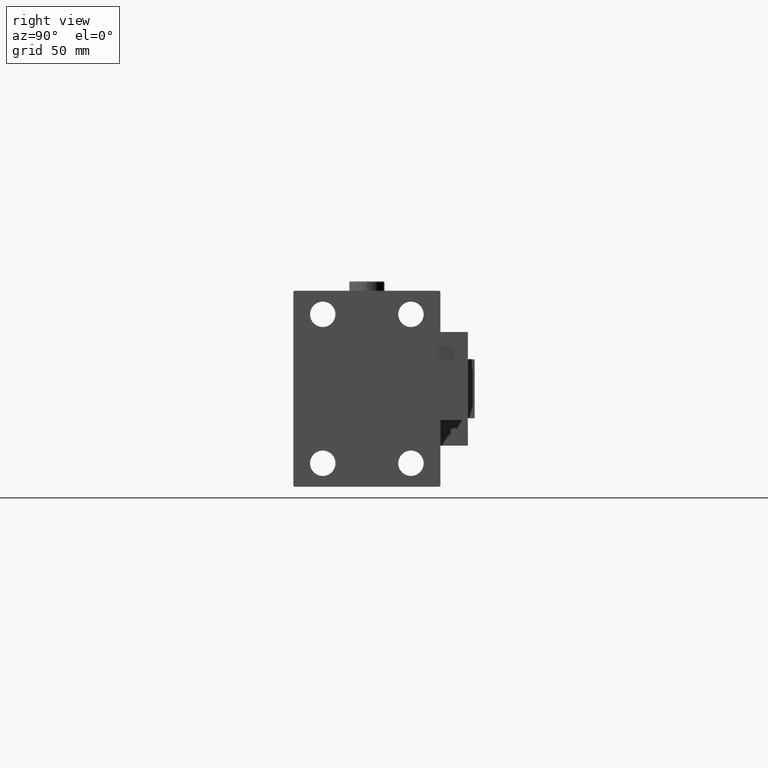
[diagram: clean part render]
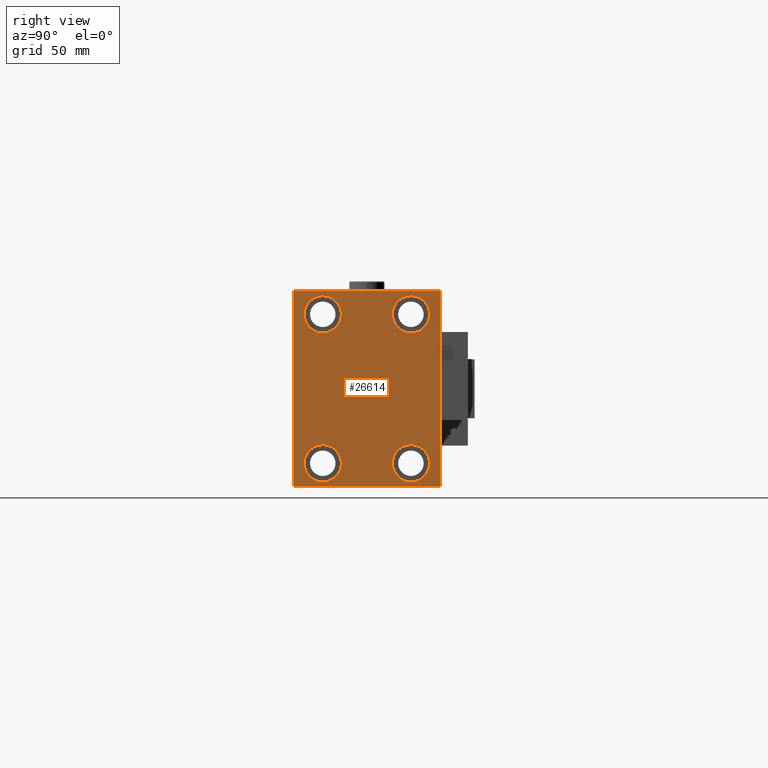
[diagram: same view with one face highlighted and labeled with its STEP entity id]
A machine part, right view. The second image highlights one B-rep face of the part: STEP entity #26614.
In plain terms, the highlighted planar face has unit normal (1, 0, 0).
Its self-contained STEP definition (entity closure, byte-faithful):
#388 = CIRCLE ( 'NONE', #50317, 9.500000000000001776 ) ;
#478 = ORIENTED_EDGE ( 'NONE', *, *, #13251, .T. ) ;
#690 = CARTESIAN_POINT ( 'NONE',  ( 233.0000000000000000, -22.50000000000000711, -37.99999999999999289 ) ) ;
#825 = VECTOR ( 'NONE', #19726, 1000.000000000000000 ) ;
#950 = VECTOR ( 'NONE', #10029, 1000.000000000000000 ) ;
#1335 = CIRCLE ( 'NONE', #16875, 9.500000000000001776 ) ;
#1760 = EDGE_CURVE ( 'NONE', #14907, #36949, #1335, .T. ) ;
#2375 = ORIENTED_EDGE ( 'NONE', *, *, #7717, .T. ) ;
#2614 = VERTEX_POINT ( 'NONE', #33602 ) ;
#3103 = ORIENTED_EDGE ( 'NONE', *, *, #49541, .T. ) ;
#3253 = EDGE_CURVE ( 'NONE', #45386, #34276, #50463, .T. ) ;
#4019 = CARTESIAN_POINT ( 'NONE',  ( 233.0000000000000000, 43.50000000000103739, -43.49999999999862865 ) ) ;
#4354 = DIRECTION ( 'NONE',  ( 0.000000000000000000, 0.000000000000000000, 1.000000000000000000 ) ) ;
#4358 = DIRECTION ( 'NONE',  ( 0.000000000000000000, 0.000000000000000000, 1.000000000000000000 ) ) ;
#4559 = VERTEX_POINT ( 'NONE', #33002 ) ;
#4630 = VECTOR ( 'NONE', #13797, 1000.000000000000000 ) ;
#5249 = DIRECTION ( 'NONE',  ( 0.000000000000000000, 0.000000000000000000, 1.000000000000000000 ) ) ;
#5491 = EDGE_CURVE ( 'NONE', #2614, #31744, #21395, .T. ) ;
#6302 = CARTESIAN_POINT ( 'NONE',  ( 233.0000000000000000, 22.50000000000000355, 28.49999999999998934 ) ) ;
#6663 = AXIS2_PLACEMENT_3D ( 'NONE', #38630, #46221, #38893 ) ;
#7473 = CARTESIAN_POINT ( 'NONE',  ( 233.0000000000000000, -22.50000000000000711, -28.49999999999998934 ) ) ;
#7717 = EDGE_CURVE ( 'NONE', #42095, #26586, #8657, .T. ) ;
#8404 = DIRECTION ( 'NONE',  ( -1.000000000000000000, -0.000000000000000000, -0.000000000000000000 ) ) ;
#8657 = LINE ( 'NONE', #42082, #11042 ) ;
#9473 = CARTESIAN_POINT ( 'NONE',  ( 233.0000000000000000, 37.50000000000000711, -50.00000000000000000 ) ) ;
#9790 = ORIENTED_EDGE ( 'NONE', *, *, #43563, .T. ) ;
#9815 = DIRECTION ( 'NONE',  ( 0.000000000000000000, 0.000000000000000000, -1.000000000000000000 ) ) ;
#9928 = EDGE_LOOP ( 'NONE', ( #52456, #3103 ) ) ;
#10029 = DIRECTION ( 'NONE',  ( 0.000000000000000000, -0.7071067811865279218, -0.7071067811865672237 ) ) ;
#10330 = ORIENTED_EDGE ( 'NONE', *, *, #5491, .T. ) ;
#10732 = ORIENTED_EDGE ( 'NONE', *, *, #42169, .T. ) ;
#10826 = CARTESIAN_POINT ( 'NONE',  ( 233.0000000000000000, 22.49999999999999645, -37.99999999999999289 ) ) ;
#11042 = VECTOR ( 'NONE', #17289, 1000.000000000000000 ) ;
#11638 = VERTEX_POINT ( 'NONE', #27073 ) ;
#11687 = CARTESIAN_POINT ( 'NONE',  ( 233.0000000000000000, -22.49999999999999645, 28.49999999999998934 ) ) ;
#11808 = ORIENTED_EDGE ( 'NONE', *, *, #1760, .T. ) ;
#12143 = EDGE_LOOP ( 'NONE', ( #42155, #9790 ) ) ;
#13251 = EDGE_CURVE ( 'NONE', #26586, #4559, #25312, .T. ) ;
#13796 = EDGE_CURVE ( 'NONE', #34252, #18000, #52461, .T. ) ;
#13797 = DIRECTION ( 'NONE',  ( 0.000000000000000000, -1.387778780781445676E-16, 1.000000000000000000 ) ) ;
#14141 = FACE_BOUND ( 'NONE', #12143, .T. ) ;
#14388 = VECTOR ( 'NONE', #14702, 1000.000000000000000 ) ;
#14702 = DIRECTION ( 'NONE',  ( 0.000000000000000000, -1.000000000000000000, -1.850371707708594316E-16 ) ) ;
#14788 = CARTESIAN_POINT ( 'NONE',  ( 233.0000000000000000, 36.99999999999999289, 50.00000000000000711 ) ) ;
#14907 = VERTEX_POINT ( 'NONE', #18104 ) ;
#15943 = CARTESIAN_POINT ( 'NONE',  ( 233.0000000000000000, -22.50000000000000711, -37.99999999999999289 ) ) ;
#16875 = AXIS2_PLACEMENT_3D ( 'NONE', #690, #33588, #5249 ) ;
#17035 = VECTOR ( 'NONE', #25462, 1000.000000000000000 ) ;
#17137 = DIRECTION ( 'NONE',  ( 1.000000000000000000, 0.000000000000000000, 0.000000000000000000 ) ) ;
#17223 = DIRECTION ( 'NONE',  ( -0.000000000000000000, 0.7071067811865279218, 0.7071067811865671127 ) ) ;
#17289 = DIRECTION ( 'NONE',  ( 0.000000000000000000, 1.000000000000000000, 9.251858538542970348E-17 ) ) ;
#17397 = FACE_BOUND ( 'NONE', #33299, .T. ) ;
#17495 = EDGE_CURVE ( 'NONE', #20914, #11638, #46706, .T. ) ;
#17845 = CIRCLE ( 'NONE', #6663, 9.500000000000001776 ) ;
#18000 = VERTEX_POINT ( 'NONE', #6302 ) ;
#18104 = CARTESIAN_POINT ( 'NONE',  ( 233.0000000000000000, -22.50000000000000711, -47.49999999999999289 ) ) ;
#18874 = VECTOR ( 'NONE', #17223, 1000.000000000000000 ) ;
#19404 = ORIENTED_EDGE ( 'NONE', *, *, #17495, .T. ) ;
#19726 = DIRECTION ( 'NONE',  ( -0.000000000000000000, 0.7071067811865671127, -0.7071067811865279218 ) ) ;
#20281 = EDGE_LOOP ( 'NONE', ( #10732, #19404, #52108, #28119, #2375, #478, #24814, #10330 ) ) ;
#20302 = CARTESIAN_POINT ( 'NONE',  ( 233.0000000000000000, -37.00000000000000711, 49.99999999999999289 ) ) ;
#20540 = DIRECTION ( 'NONE',  ( -1.000000000000000000, -0.000000000000000000, -0.000000000000000000 ) ) ;
#20760 = VERTEX_POINT ( 'NONE', #52399 ) ;
#20914 = VERTEX_POINT ( 'NONE', #20302 ) ;
#21395 = LINE ( 'NONE', #41121, #17035 ) ;
#22789 = CARTESIAN_POINT ( 'NONE',  ( 233.0000000000000000, -37.00000000000000711, -50.00000000000000711 ) ) ;
#23179 = CARTESIAN_POINT ( 'NONE',  ( 233.0000000000000000, -37.50000000000000711, 49.99999999999999289 ) ) ;
#24814 = ORIENTED_EDGE ( 'NONE', *, *, #31171, .T. ) ;
#25082 = CARTESIAN_POINT ( 'NONE',  ( 233.0000000000000000, 22.49999999999999645, -37.99999999999999289 ) ) ;
#25312 = LINE ( 'NONE', #4019, #18874 ) ;
#25409 = ORIENTED_EDGE ( 'NONE', *, *, #31067, .T. ) ;
#25462 = DIRECTION ( 'NONE',  ( -0.000000000000000000, -0.7071067811865622277, 0.7071067811865328068 ) ) ;
#25751 = CARTESIAN_POINT ( 'NONE',  ( 233.0000000000000000, 37.00000000000003553, -50.00000000000000000 ) ) ;
#26129 = CIRCLE ( 'NONE', #44238, 9.500000000000001776 ) ;
#26455 = LINE ( 'NONE', #9473, #4630 ) ;
#26586 = VERTEX_POINT ( 'NONE', #25751 ) ;
#26614 = ADVANCED_FACE ( 'NONE', ( #29806, #14141, #33575, #17397, #38133 ), #47030, .T. ) ;
#26840 = CARTESIAN_POINT ( 'NONE',  ( 233.0000000000000000, 37.49999999999999289, 50.00000000000000711 ) ) ;
#27073 = CARTESIAN_POINT ( 'NONE',  ( 233.0000000000000000, -37.50000000000000711, 49.49999999999996447 ) ) ;
#27277 = DIRECTION ( 'NONE',  ( -1.000000000000000000, -0.000000000000000000, -0.000000000000000000 ) ) ;
#27404 = ORIENTED_EDGE ( 'NONE', *, *, #48246, .T. ) ;
#27536 = VECTOR ( 'NONE', #39085, 1000.000000000000000 ) ;
#28080 = DIRECTION ( 'NONE',  ( 0.000000000000000000, 0.000000000000000000, 1.000000000000000000 ) ) ;
#28119 = ORIENTED_EDGE ( 'NONE', *, *, #48130, .T. ) ;
#28403 = AXIS2_PLACEMENT_3D ( 'NONE', #32411, #8404, #4354 ) ;
#29806 = FACE_BOUND ( 'NONE', #9928, .T. ) ;
#30334 = AXIS2_PLACEMENT_3D ( 'NONE', #25082, #32366, #45576 ) ;
#30672 = AXIS2_PLACEMENT_3D ( 'NONE', #10826, #27277, #43735 ) ;
#31067 = EDGE_CURVE ( 'NONE', #36949, #14907, #26129, .T. ) ;
#31088 = AXIS2_PLACEMENT_3D ( 'NONE', #50545, #17137, #9815 ) ;
#31142 = CARTESIAN_POINT ( 'NONE',  ( 233.0000000000000000, 22.50000000000000355, 47.49999999999999289 ) ) ;
#31171 = EDGE_CURVE ( 'NONE', #4559, #2614, #26455, .T. ) ;
#31744 = VERTEX_POINT ( 'NONE', #14788 ) ;
#32366 = DIRECTION ( 'NONE',  ( -1.000000000000000000, -0.000000000000000000, -0.000000000000000000 ) ) ;
#32411 = CARTESIAN_POINT ( 'NONE',  ( 233.0000000000000000, 22.50000000000000355, 37.99999999999999289 ) ) ;
#33002 = CARTESIAN_POINT ( 'NONE',  ( 233.0000000000000000, 37.50000000000000711, -49.50000000000000000 ) ) ;
#33299 = EDGE_LOOP ( 'NONE', ( #11808, #25409 ) ) ;
#33575 = FACE_BOUND ( 'NONE', #33738, .T. ) ;
#33588 = DIRECTION ( 'NONE',  ( -1.000000000000000000, -0.000000000000000000, -0.000000000000000000 ) ) ;
#33602 = CARTESIAN_POINT ( 'NONE',  ( 233.0000000000000000, 37.49999999999999289, 49.50000000000002842 ) ) ;
#33738 = EDGE_LOOP ( 'NONE', ( #27404, #47727 ) ) ;
#33887 = DIRECTION ( 'NONE',  ( 0.000000000000000000, 0.000000000000000000, 1.000000000000000000 ) ) ;
#34252 = VERTEX_POINT ( 'NONE', #31142 ) ;
#34276 = VERTEX_POINT ( 'NONE', #35459 ) ;
#35364 = LINE ( 'NONE', #43746, #825 ) ;
#35459 = CARTESIAN_POINT ( 'NONE',  ( 233.0000000000000000, 22.49999999999999645, -28.49999999999998934 ) ) ;
#36384 = EDGE_CURVE ( 'NONE', #53181, #20760, #388, .T. ) ;
#36949 = VERTEX_POINT ( 'NONE', #7473 ) ;
#38133 = FACE_OUTER_BOUND ( 'NONE', #20281, .T. ) ;
#38630 = CARTESIAN_POINT ( 'NONE',  ( 233.0000000000000000, -22.49999999999999645, 37.99999999999999289 ) ) ;
#38893 = DIRECTION ( 'NONE',  ( 0.000000000000000000, 0.000000000000000000, 1.000000000000000000 ) ) ;
#39085 = DIRECTION ( 'NONE',  ( 0.000000000000000000, 0.000000000000000000, -1.000000000000000000 ) ) ;
#39992 = CARTESIAN_POINT ( 'NONE',  ( 233.0000000000000000, -37.50000000000000711, -49.50000000000003553 ) ) ;
#40418 = AXIS2_PLACEMENT_3D ( 'NONE', #41312, #20540, #4358 ) ;
#40437 = CIRCLE ( 'NONE', #28403, 9.500000000000001776 ) ;
#41121 = CARTESIAN_POINT ( 'NONE',  ( 233.0000000000000000, 43.49999999999922551, 43.50000000000103739 ) ) ;
#41312 = CARTESIAN_POINT ( 'NONE',  ( 233.0000000000000000, 22.50000000000000355, 37.99999999999999289 ) ) ;
#42082 = CARTESIAN_POINT ( 'NONE',  ( 233.0000000000000000, -37.50000000000000711, -50.00000000000000711 ) ) ;
#42095 = VERTEX_POINT ( 'NONE', #22789 ) ;
#42155 = ORIENTED_EDGE ( 'NONE', *, *, #36384, .T. ) ;
#42169 = EDGE_CURVE ( 'NONE', #31744, #20914, #43287, .T. ) ;
#42256 = CARTESIAN_POINT ( 'NONE',  ( 233.0000000000000000, -22.49999999999999645, 37.99999999999999289 ) ) ;
#43276 = CIRCLE ( 'NONE', #30334, 9.500000000000001776 ) ;
#43287 = LINE ( 'NONE', #26840, #14388 ) ;
#43563 = EDGE_CURVE ( 'NONE', #20760, #53181, #17845, .T. ) ;
#43683 = LINE ( 'NONE', #23179, #27536 ) ;
#43735 = DIRECTION ( 'NONE',  ( 0.000000000000000000, 0.000000000000000000, 1.000000000000000000 ) ) ;
#43746 = CARTESIAN_POINT ( 'NONE',  ( 233.0000000000000000, -43.49999999999898392, -43.50000000000139266 ) ) ;
#44238 = AXIS2_PLACEMENT_3D ( 'NONE', #15943, #48841, #28080 ) ;
#45386 = VERTEX_POINT ( 'NONE', #48895 ) ;
#45576 = DIRECTION ( 'NONE',  ( 0.000000000000000000, 0.000000000000000000, 1.000000000000000000 ) ) ;
#46221 = DIRECTION ( 'NONE',  ( -1.000000000000000000, -0.000000000000000000, -0.000000000000000000 ) ) ;
#46312 = DIRECTION ( 'NONE',  ( -1.000000000000000000, -0.000000000000000000, -0.000000000000000000 ) ) ;
#46706 = LINE ( 'NONE', #46973, #950 ) ;
#46973 = CARTESIAN_POINT ( 'NONE',  ( 233.0000000000000000, -43.50000000000103029, 43.49999999999860734 ) ) ;
#47030 = PLANE ( 'NONE',  #31088 ) ;
#47727 = ORIENTED_EDGE ( 'NONE', *, *, #13796, .T. ) ;
#48130 = EDGE_CURVE ( 'NONE', #50405, #42095, #35364, .T. ) ;
#48246 = EDGE_CURVE ( 'NONE', #18000, #34252, #40437, .T. ) ;
#48482 = EDGE_CURVE ( 'NONE', #11638, #50405, #43683, .T. ) ;
#48841 = DIRECTION ( 'NONE',  ( -1.000000000000000000, -0.000000000000000000, -0.000000000000000000 ) ) ;
#48895 = CARTESIAN_POINT ( 'NONE',  ( 233.0000000000000000, 22.49999999999999645, -47.49999999999999289 ) ) ;
#49541 = EDGE_CURVE ( 'NONE', #34276, #45386, #43276, .T. ) ;
#50317 = AXIS2_PLACEMENT_3D ( 'NONE', #42256, #46312, #33887 ) ;
#50405 = VERTEX_POINT ( 'NONE', #39992 ) ;
#50463 = CIRCLE ( 'NONE', #30672, 9.500000000000001776 ) ;
#50545 = CARTESIAN_POINT ( 'NONE',  ( 233.0000000000000000, 0.000000000000000000, 0.000000000000000000 ) ) ;
#52108 = ORIENTED_EDGE ( 'NONE', *, *, #48482, .T. ) ;
#52399 = CARTESIAN_POINT ( 'NONE',  ( 233.0000000000000000, -22.49999999999999645, 47.49999999999999289 ) ) ;
#52456 = ORIENTED_EDGE ( 'NONE', *, *, #3253, .T. ) ;
#52461 = CIRCLE ( 'NONE', #40418, 9.500000000000001776 ) ;
#53181 = VERTEX_POINT ( 'NONE', #11687 ) ;